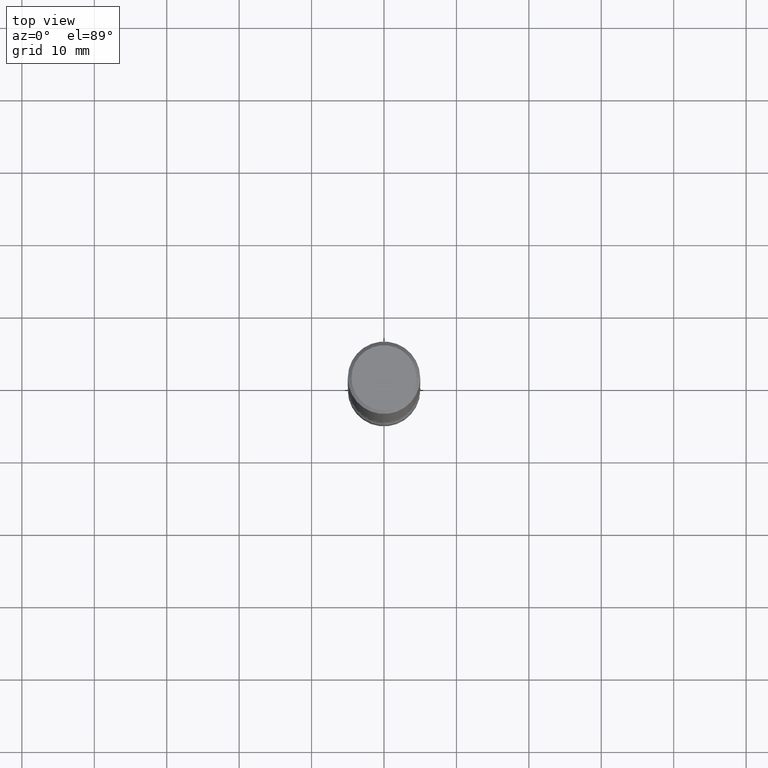
[diagram: clean part render]
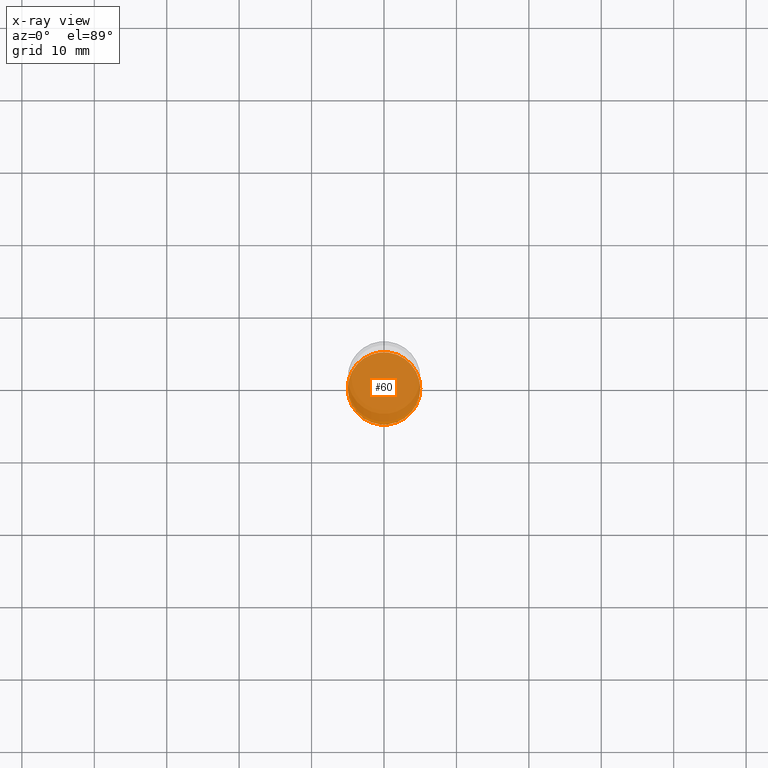
[diagram: x-ray — body ghosted, one internal face saturated and labeled with its STEP entity id]
A machine part, top view, then the same camera in x-ray: the body is ghosted and one INTERNAL B-rep face — a face not visible from any outside direction — is saturated and labeled: STEP entity #60.
In plain terms, the highlighted planar face has unit normal (0, -0, -1).
Its self-contained STEP definition (entity closure, byte-faithful):
#16 = DIRECTION ( 'NONE',  ( 1.000000000000000000, -6.982962677686265133E-15, 0.000000000000000000 ) ) ;
#25 = CARTESIAN_POINT ( 'NONE',  ( 8.279868283981634472E-29, -1.182145751705512057E-14, -3.385799999999999699 ) ) ;
#60 = ADVANCED_FACE ( 'NONE', ( #194 ), #452, .F. ) ;
#89 = CARTESIAN_POINT ( 'NONE',  ( -0.1968500000000001082, -1.131622421632132460E-14, -3.385799999999999699 ) ) ;
#127 = CIRCLE ( 'NONE', #441, 0.1968500000000001082 ) ;
#134 = EDGE_CURVE ( 'NONE', #494, #135, #127, .T. ) ;
#135 = VERTEX_POINT ( 'NONE', #169 ) ;
#137 = AXIS2_PLACEMENT_3D ( 'NONE', #198, #238, #454 ) ;
#163 = CARTESIAN_POINT ( 'NONE',  ( 8.279868283981634472E-29, -1.182145751705512057E-14, -3.385799999999999699 ) ) ;
#169 = CARTESIAN_POINT ( 'NONE',  ( 0.1968500000000001082, -1.319605372015766376E-14, -3.385799999999999699 ) ) ;
#170 = DIRECTION ( 'NONE',  ( -2.445468806185136597E-29, 3.491481338843145583E-15, 1.000000000000000000 ) ) ;
#194 = FACE_OUTER_BOUND ( 'NONE', #251, .T. ) ;
#198 = CARTESIAN_POINT ( 'NONE',  ( 8.279868283981634472E-29, -1.182145751705512057E-14, -3.385799999999999699 ) ) ;
#231 = DIRECTION ( 'NONE',  ( -2.445468806185136597E-29, 3.491481338843145583E-15, 1.000000000000000000 ) ) ;
#238 = DIRECTION ( 'NONE',  ( 2.438088387897960049E-29, -3.491481338843145188E-15, -1.000000000000000000 ) ) ;
#245 = CIRCLE ( 'NONE', #432, 0.1968500000000001082 ) ;
#247 = DIRECTION ( 'NONE',  ( 1.000000000000000000, -6.982962677686265133E-15, 0.000000000000000000 ) ) ;
#251 = EDGE_LOOP ( 'NONE', ( #312, #516 ) ) ;
#287 = EDGE_CURVE ( 'NONE', #135, #494, #245, .T. ) ;
#312 = ORIENTED_EDGE ( 'NONE', *, *, #287, .T. ) ;
#432 = AXIS2_PLACEMENT_3D ( 'NONE', #163, #231, #16 ) ;
#441 = AXIS2_PLACEMENT_3D ( 'NONE', #25, #170, #247 ) ;
#452 = PLANE ( 'NONE',  #137 ) ;
#454 = DIRECTION ( 'NONE',  ( -1.000000000000000000, 6.982962677686265922E-15, -4.876176775795935793E-29 ) ) ;
#494 = VERTEX_POINT ( 'NONE', #89 ) ;
#516 = ORIENTED_EDGE ( 'NONE', *, *, #134, .T. ) ;